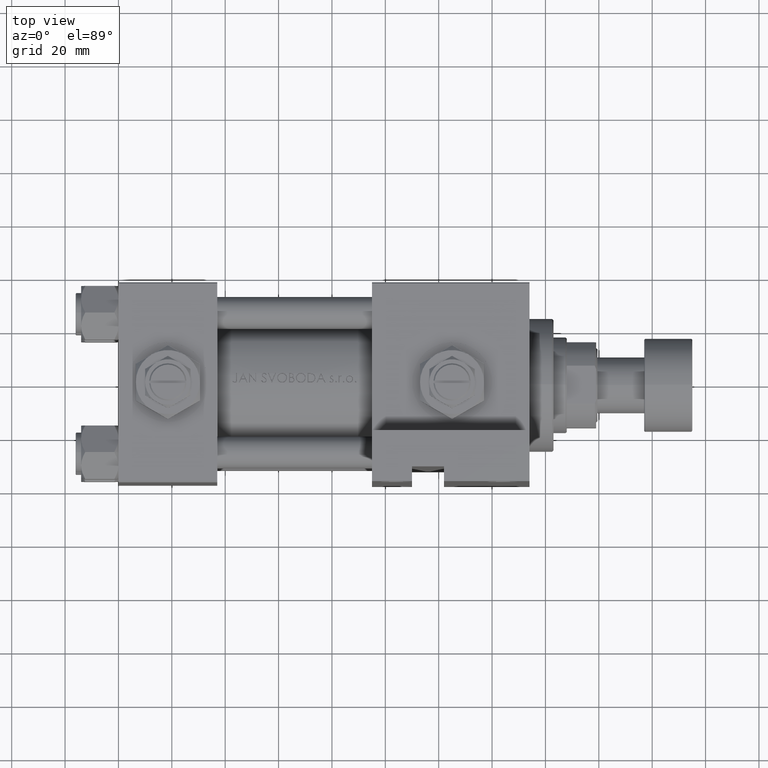
[diagram: clean part render]
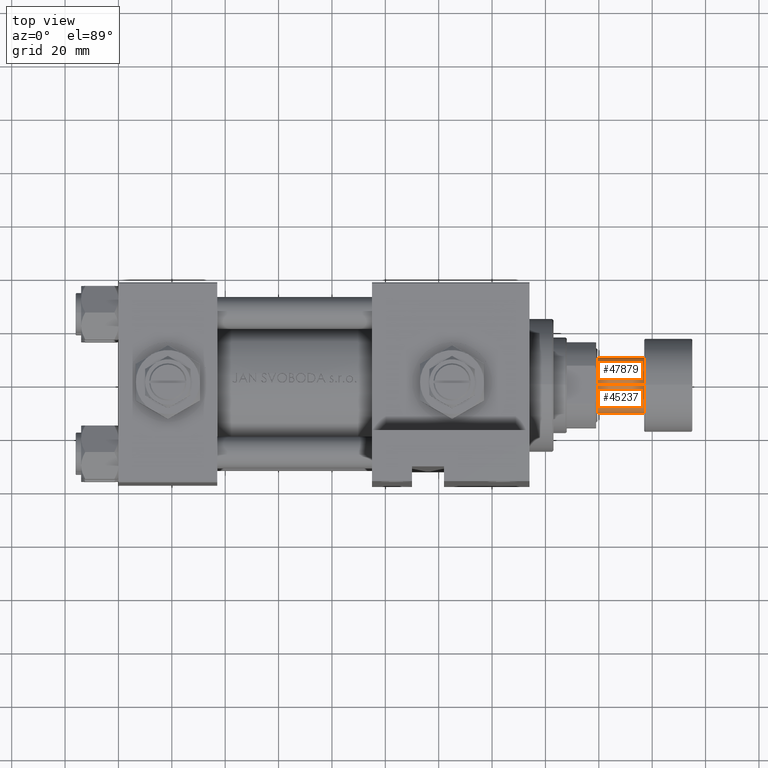
[diagram: same view with one multi-face feature highlighted, each face labeled with its STEP entity id]
A machine part, top view. The highlighted faces form ONE feature: a constant-radius fillet chain: 2 tangent blend faces with common blend radius 10.5 mm. The faces share edges in the B-rep.
Their STEP definitions:
[1] entity #47879 (Cylinder):
#60 = CARTESIAN_POINT ( 'NONE',  ( 10.50000000000000000, 0.000000000000000000, -35.50000000000000711 ) ) ;
#497 = ORIENTED_EDGE ( 'NONE', *, *, #5175, .T. ) ;
#2907 = DIRECTION ( 'NONE',  ( 0.000000000000000000, 0.000000000000000000, -1.000000000000000000 ) ) ;
#3492 = CIRCLE ( 'NONE', #5134, 10.50000000000000000 ) ;
#4019 = DIRECTION ( 'NONE',  ( -0.000000000000000000, -0.000000000000000000, 1.000000000000000000 ) ) ;
#5134 = AXIS2_PLACEMENT_3D ( 'NONE', #34811, #31012, #30240 ) ;
#5175 = EDGE_CURVE ( 'NONE', #37088, #7537, #3492, .T. ) ;
#7537 = VERTEX_POINT ( 'NONE', #12365 ) ;
#9624 = LINE ( 'NONE', #39614, #28017 ) ;
#11894 = CARTESIAN_POINT ( 'NONE',  ( 10.50000000000000000, 0.000000000000000000, -35.50000000000000711 ) ) ;
#12365 = CARTESIAN_POINT ( 'NONE',  ( 10.50000000000000000, 0.000000000000000000, -18.00000000000000000 ) ) ;
#13073 = CARTESIAN_POINT ( 'NONE',  ( 0.000000000000000000, 0.000000000000000000, -35.50000000000000711 ) ) ;
#15707 = LINE ( 'NONE', #11894, #17017 ) ;
#17017 = VECTOR ( 'NONE', #4019, 1000.000000000000000 ) ;
#19057 = ORIENTED_EDGE ( 'NONE', *, *, #47617, .F. ) ;
#20952 = DIRECTION ( 'NONE',  ( 1.000000000000000000, 0.000000000000000000, 0.000000000000000000 ) ) ;
#21082 = AXIS2_PLACEMENT_3D ( 'NONE', #13073, #32870, #20952 ) ;
#27262 = EDGE_CURVE ( 'NONE', #41914, #37607, #32455, .T. ) ;
#28017 = VECTOR ( 'NONE', #40119, 1000.000000000000000 ) ;
#28716 = CARTESIAN_POINT ( 'NONE',  ( -10.50000000000000000, 1.285879139104720831E-15, -35.50000000000000711 ) ) ;
#29238 = EDGE_CURVE ( 'NONE', #41914, #37088, #9624, .T. ) ;
#29560 = ORIENTED_EDGE ( 'NONE', *, *, #27262, .F. ) ;
#30240 = DIRECTION ( 'NONE',  ( -1.000000000000000000, 0.000000000000000000, 0.000000000000000000 ) ) ;
#31012 = DIRECTION ( 'NONE',  ( 0.000000000000000000, 0.000000000000000000, -1.000000000000000000 ) ) ;
#32014 = EDGE_LOOP ( 'NONE', ( #29560, #49024, #497, #19057 ) ) ;
#32455 = CIRCLE ( 'NONE', #38926, 10.50000000000000000 ) ;
#32870 = DIRECTION ( 'NONE',  ( -0.000000000000000000, -0.000000000000000000, 1.000000000000000000 ) ) ;
#34811 = CARTESIAN_POINT ( 'NONE',  ( 0.000000000000000000, 0.000000000000000000, -18.00000000000000000 ) ) ;
#37088 = VERTEX_POINT ( 'NONE', #41358 ) ;
#37607 = VERTEX_POINT ( 'NONE', #60 ) ;
#37693 = CARTESIAN_POINT ( 'NONE',  ( 0.000000000000000000, 0.000000000000000000, -35.50000000000000711 ) ) ;
#38926 = AXIS2_PLACEMENT_3D ( 'NONE', #37693, #2907, #45047 ) ;
#39614 = CARTESIAN_POINT ( 'NONE',  ( -10.50000000000000000, 1.285879139104720831E-15, -35.50000000000000711 ) ) ;
#40119 = DIRECTION ( 'NONE',  ( -0.000000000000000000, -0.000000000000000000, 1.000000000000000000 ) ) ;
#40240 = FACE_OUTER_BOUND ( 'NONE', #32014, .T. ) ;
#41358 = CARTESIAN_POINT ( 'NONE',  ( -10.50000000000000000, 1.285879139104720831E-15, -18.00000000000000000 ) ) ;
#41914 = VERTEX_POINT ( 'NONE', #28716 ) ;
#43553 = CYLINDRICAL_SURFACE ( 'NONE', #21082, 10.50000000000000000 ) ;
#45047 = DIRECTION ( 'NONE',  ( -1.000000000000000000, 0.000000000000000000, 0.000000000000000000 ) ) ;
#47617 = EDGE_CURVE ( 'NONE', #37607, #7537, #15707, .T. ) ;
#47879 = ADVANCED_FACE ( 'NONE', ( #40240 ), #43553, .T. ) ;
#49024 = ORIENTED_EDGE ( 'NONE', *, *, #29238, .T. ) ;
[2] entity #45237 (Cylinder):
#60 = CARTESIAN_POINT ( 'NONE',  ( 10.50000000000000000, 0.000000000000000000, -35.50000000000000711 ) ) ;
#1883 = AXIS2_PLACEMENT_3D ( 'NONE', #7608, #11151, #38572 ) ;
#3069 = EDGE_CURVE ( 'NONE', #37607, #41914, #47932, .T. ) ;
#4019 = DIRECTION ( 'NONE',  ( -0.000000000000000000, -0.000000000000000000, 1.000000000000000000 ) ) ;
#4119 = DIRECTION ( 'NONE',  ( 1.000000000000000000, 0.000000000000000000, 0.000000000000000000 ) ) ;
#7537 = VERTEX_POINT ( 'NONE', #12365 ) ;
#7608 = CARTESIAN_POINT ( 'NONE',  ( 0.000000000000000000, 0.000000000000000000, -18.00000000000000000 ) ) ;
#9624 = LINE ( 'NONE', #39614, #28017 ) ;
#11151 = DIRECTION ( 'NONE',  ( 0.000000000000000000, 0.000000000000000000, -1.000000000000000000 ) ) ;
#11894 = CARTESIAN_POINT ( 'NONE',  ( 10.50000000000000000, 0.000000000000000000, -35.50000000000000711 ) ) ;
#12240 = CARTESIAN_POINT ( 'NONE',  ( 0.000000000000000000, 0.000000000000000000, -35.50000000000000711 ) ) ;
#12365 = CARTESIAN_POINT ( 'NONE',  ( 10.50000000000000000, 0.000000000000000000, -18.00000000000000000 ) ) ;
#13931 = ORIENTED_EDGE ( 'NONE', *, *, #47617, .T. ) ;
#14000 = EDGE_LOOP ( 'NONE', ( #18829, #32277, #13931, #43552 ) ) ;
#15707 = LINE ( 'NONE', #11894, #17017 ) ;
#16506 = CARTESIAN_POINT ( 'NONE',  ( 0.000000000000000000, 0.000000000000000000, -35.50000000000000711 ) ) ;
#17017 = VECTOR ( 'NONE', #4019, 1000.000000000000000 ) ;
#18829 = ORIENTED_EDGE ( 'NONE', *, *, #29238, .F. ) ;
#20822 = DIRECTION ( 'NONE',  ( -1.000000000000000000, 0.000000000000000000, 0.000000000000000000 ) ) ;
#22549 = EDGE_CURVE ( 'NONE', #7537, #37088, #22994, .T. ) ;
#22994 = CIRCLE ( 'NONE', #1883, 10.50000000000000000 ) ;
#28017 = VECTOR ( 'NONE', #40119, 1000.000000000000000 ) ;
#28716 = CARTESIAN_POINT ( 'NONE',  ( -10.50000000000000000, 1.285879139104720831E-15, -35.50000000000000711 ) ) ;
#29238 = EDGE_CURVE ( 'NONE', #41914, #37088, #9624, .T. ) ;
#31306 = FACE_OUTER_BOUND ( 'NONE', #14000, .T. ) ;
#32277 = ORIENTED_EDGE ( 'NONE', *, *, #3069, .F. ) ;
#37088 = VERTEX_POINT ( 'NONE', #41358 ) ;
#37607 = VERTEX_POINT ( 'NONE', #60 ) ;
#38572 = DIRECTION ( 'NONE',  ( -1.000000000000000000, 0.000000000000000000, 0.000000000000000000 ) ) ;
#39614 = CARTESIAN_POINT ( 'NONE',  ( -10.50000000000000000, 1.285879139104720831E-15, -35.50000000000000711 ) ) ;
#39648 = DIRECTION ( 'NONE',  ( -0.000000000000000000, -0.000000000000000000, 1.000000000000000000 ) ) ;
#39904 = CYLINDRICAL_SURFACE ( 'NONE', #50155, 10.50000000000000000 ) ;
#40119 = DIRECTION ( 'NONE',  ( -0.000000000000000000, -0.000000000000000000, 1.000000000000000000 ) ) ;
#41358 = CARTESIAN_POINT ( 'NONE',  ( -10.50000000000000000, 1.285879139104720831E-15, -18.00000000000000000 ) ) ;
#41914 = VERTEX_POINT ( 'NONE', #28716 ) ;
#43552 = ORIENTED_EDGE ( 'NONE', *, *, #22549, .T. ) ;
#45237 = ADVANCED_FACE ( 'NONE', ( #31306 ), #39904, .T. ) ;
#47617 = EDGE_CURVE ( 'NONE', #37607, #7537, #15707, .T. ) ;
#47682 = DIRECTION ( 'NONE',  ( 0.000000000000000000, 0.000000000000000000, -1.000000000000000000 ) ) ;
#47932 = CIRCLE ( 'NONE', #48764, 10.50000000000000000 ) ;
#48764 = AXIS2_PLACEMENT_3D ( 'NONE', #16506, #47682, #20822 ) ;
#50155 = AXIS2_PLACEMENT_3D ( 'NONE', #12240, #39648, #4119 ) ;